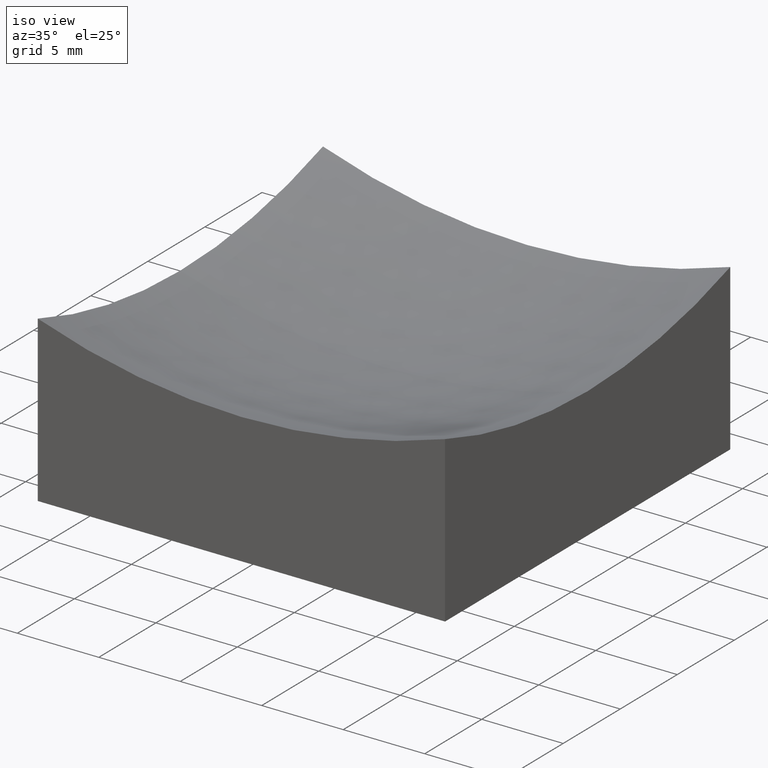
[diagram: clean part render]
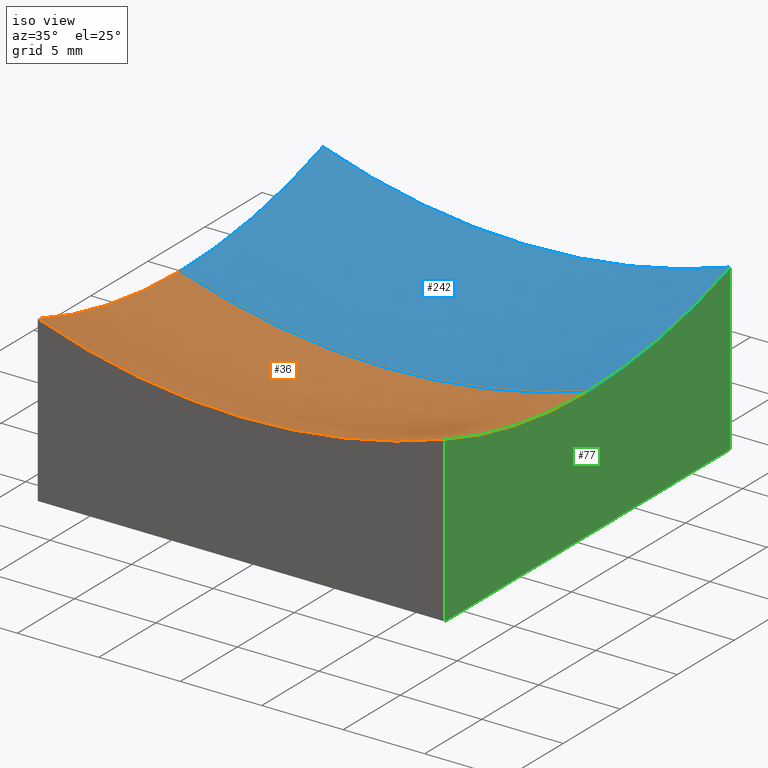
[diagram: same view with three faces highlighted in distinct colors, each labeled with its STEP entity id]
A machine part, iso view with three faces highlighted in distinct colors.
Their STEP definitions:

[orange] entity #36 — the highlighted spherical surface has radius 40 mm.
#6 = EDGE_LOOP ( 'NONE', ( #153, #200, #25, #47, #182 ) ) ;
#7 = DIRECTION ( 'NONE',  ( -0.0000000000000000000, 1.000000000000000000, 0.0000000000000000000 ) ) ;
#15 = AXIS2_PLACEMENT_3D ( 'NONE', #89, #35, #106 ) ;
#18 = AXIS2_PLACEMENT_3D ( 'NONE', #183, #7, #84 ) ;
#22 = CIRCLE ( 'NONE', #63, 37.99671038392666844 ) ;
#25 = ORIENTED_EDGE ( 'NONE', *, *, #154, .F. ) ;
#26 = EDGE_CURVE ( 'NONE', #132, #46, #234, .T. ) ;
#35 = DIRECTION ( 'NONE',  ( 0.0000000000000000000, -1.000000000000000000, -0.0000000000000000000 ) ) ;
#36 = ADVANCED_FACE ( 'NONE', ( #220 ), #203, .F. ) ;
#37 = EDGE_CURVE ( 'NONE', #132, #81, #22, .T. ) ;
#42 = EDGE_CURVE ( 'NONE', #140, #184, #238, .T. ) ;
#46 = VERTEX_POINT ( 'NONE', #85 ) ;
#47 = ORIENTED_EDGE ( 'NONE', *, *, #37, .F. ) ;
#48 = CARTESIAN_POINT ( 'NONE',  ( 12.50000000000000178, 1.734723475976806700E-15, 46.00000000000000000 ) ) ;
#50 = DIRECTION ( 'NONE',  ( 0.0000000000000000000, 0.0000000000000000000, 1.000000000000000000 ) ) ;
#63 = AXIS2_PLACEMENT_3D ( 'NONE', #124, #121, #50 ) ;
#67 = DIRECTION ( 'NONE',  ( 1.000000000000000000, 1.387778780781445676E-16, -0.0000000000000000000 ) ) ;
#74 = CARTESIAN_POINT ( 'NONE',  ( 12.50000000000000355, -12.50000000000000000, 10.11824976398168552 ) ) ;
#81 = VERTEX_POINT ( 'NONE', #228 ) ;
#84 = DIRECTION ( 'NONE',  ( 1.000000000000000000, 0.0000000000000000000, 0.0000000000000000000 ) ) ;
#85 = CARTESIAN_POINT ( 'NONE',  ( 12.50000000000000178, 0.0000000000000000000, 8.003289616073335111 ) ) ;
#89 = CARTESIAN_POINT ( 'NONE',  ( 5.633375276077824704E-15, 0.0000000000000000000, 46.00000000000000000 ) ) ;
#106 = DIRECTION ( 'NONE',  ( 0.0000000000000000000, 0.0000000000000000000, -1.000000000000000000 ) ) ;
#107 = DIRECTION ( 'NONE',  ( 1.000000000000000000, 1.387778780781445676E-16, -0.0000000000000000000 ) ) ;
#121 = DIRECTION ( 'NONE',  ( 0.0000000000000000000, 1.000000000000000000, 0.0000000000000000000 ) ) ;
#124 = CARTESIAN_POINT ( 'NONE',  ( 5.633375276077824704E-15, -12.50000000000000000, 46.00000000000000000 ) ) ;
#125 = AXIS2_PLACEMENT_3D ( 'NONE', #247, #107, #169 ) ;
#132 = VERTEX_POINT ( 'NONE', #74 ) ;
#133 = EDGE_CURVE ( 'NONE', #140, #46, #161, .T. ) ;
#140 = VERTEX_POINT ( 'NONE', #245 ) ;
#153 = ORIENTED_EDGE ( 'NONE', *, *, #133, .F. ) ;
#154 = EDGE_CURVE ( 'NONE', #81, #184, #213, .T. ) ;
#161 = CIRCLE ( 'NONE', #15, 40.00000000000000000 ) ;
#165 = DIRECTION ( 'NONE',  ( 1.224646799147353207E-16, 1.000000000000000000, -5.143359600162762800E-33 ) ) ;
#169 = DIRECTION ( 'NONE',  ( -1.369637101566530917E-16, 1.000000000000000000, 0.0000000000000000000 ) ) ;
#170 = CARTESIAN_POINT ( 'NONE',  ( -12.49999999999999822, 1.530808498934191521E-15, 8.003289616073342216 ) ) ;
#182 = ORIENTED_EDGE ( 'NONE', *, *, #26, .T. ) ;
#183 = CARTESIAN_POINT ( 'NONE',  ( 5.633375276077824704E-15, 0.0000000000000000000, 46.00000000000000000 ) ) ;
#184 = VERTEX_POINT ( 'NONE', #170 ) ;
#198 = CARTESIAN_POINT ( 'NONE',  ( 5.633375276077824704E-15, 0.0000000000000000000, 46.00000000000000000 ) ) ;
#200 = ORIENTED_EDGE ( 'NONE', *, *, #42, .T. ) ;
#203 = SPHERICAL_SURFACE ( 'NONE', #18, 40.00000000000000000 ) ;
#207 = AXIS2_PLACEMENT_3D ( 'NONE', #198, #165, #243 ) ;
#213 = CIRCLE ( 'NONE', #125, 37.99671038392665423 ) ;
#220 = FACE_OUTER_BOUND ( 'NONE', #6, .T. ) ;
#224 = AXIS2_PLACEMENT_3D ( 'NONE', #48, #67, #227 ) ;
#227 = DIRECTION ( 'NONE',  ( -1.369637101566530670E-16, 1.000000000000000000, 0.0000000000000000000 ) ) ;
#228 = CARTESIAN_POINT ( 'NONE',  ( -12.49999999999999645, -12.50000000000000000, 10.11824976398168552 ) ) ;
#234 = CIRCLE ( 'NONE', #224, 37.99671038392666134 ) ;
#238 = CIRCLE ( 'NONE', #207, 40.00000000000000000 ) ;
#243 = DIRECTION ( 'NONE',  ( -1.000000000000000000, 1.224646799147353207E-16, 0.0000000000000000000 ) ) ;
#245 = CARTESIAN_POINT ( 'NONE',  ( 6.402720140176264670E-15, 0.0000000000000000000, 5.999999999999998224 ) ) ;
#247 = CARTESIAN_POINT ( 'NONE',  ( -12.49999999999999822, -1.734723475976807883E-15, 46.00000000000000000 ) ) ;

[blue] entity #242 — the highlighted spherical surface has radius 40 mm.
#15 = AXIS2_PLACEMENT_3D ( 'NONE', #89, #35, #106 ) ;
#19 = CARTESIAN_POINT ( 'NONE',  ( 5.633375276077824704E-15, 0.0000000000000000000, 46.00000000000000000 ) ) ;
#24 = VERTEX_POINT ( 'NONE', #143 ) ;
#35 = DIRECTION ( 'NONE',  ( 0.0000000000000000000, -1.000000000000000000, -0.0000000000000000000 ) ) ;
#42 = EDGE_CURVE ( 'NONE', #140, #184, #238, .T. ) ;
#45 = AXIS2_PLACEMENT_3D ( 'NONE', #251, #59, #218 ) ;
#46 = VERTEX_POINT ( 'NONE', #85 ) ;
#59 = DIRECTION ( 'NONE',  ( 1.000000000000000000, 1.387778780781445676E-16, -0.0000000000000000000 ) ) ;
#66 = ORIENTED_EDGE ( 'NONE', *, *, #133, .T. ) ;
#76 = CIRCLE ( 'NONE', #96, 37.99671038392665423 ) ;
#80 = DIRECTION ( 'NONE',  ( 1.000000000000000000, 1.387778780781445676E-16, -0.0000000000000000000 ) ) ;
#83 = ORIENTED_EDGE ( 'NONE', *, *, #194, .T. ) ;
#85 = CARTESIAN_POINT ( 'NONE',  ( 12.50000000000000178, 0.0000000000000000000, 8.003289616073335111 ) ) ;
#89 = CARTESIAN_POINT ( 'NONE',  ( 5.633375276077824704E-15, 0.0000000000000000000, 46.00000000000000000 ) ) ;
#94 = CARTESIAN_POINT ( 'NONE',  ( -12.49999999999999822, -1.734723475976807883E-15, 46.00000000000000000 ) ) ;
#95 = DIRECTION ( 'NONE',  ( 0.0000000000000000000, 1.000000000000000000, 0.0000000000000000000 ) ) ;
#96 = AXIS2_PLACEMENT_3D ( 'NONE', #94, #80, #217 ) ;
#105 = AXIS2_PLACEMENT_3D ( 'NONE', #19, #221, #235 ) ;
#106 = DIRECTION ( 'NONE',  ( 0.0000000000000000000, 0.0000000000000000000, -1.000000000000000000 ) ) ;
#122 = FACE_OUTER_BOUND ( 'NONE', #180, .T. ) ;
#123 = ORIENTED_EDGE ( 'NONE', *, *, #215, .F. ) ;
#131 = CARTESIAN_POINT ( 'NONE',  ( -12.50000000000000000, 12.50000000000000000, 10.11824976398169262 ) ) ;
#133 = EDGE_CURVE ( 'NONE', #140, #46, #161, .T. ) ;
#137 = CARTESIAN_POINT ( 'NONE',  ( 5.633375276077824704E-15, 12.50000000000000000, 46.00000000000000000 ) ) ;
#140 = VERTEX_POINT ( 'NONE', #245 ) ;
#142 = VERTEX_POINT ( 'NONE', #131 ) ;
#143 = CARTESIAN_POINT ( 'NONE',  ( 12.50000000000000000, 12.50000000000000000, 10.11824976398168552 ) ) ;
#156 = CIRCLE ( 'NONE', #45, 37.99671038392666134 ) ;
#161 = CIRCLE ( 'NONE', #15, 40.00000000000000000 ) ;
#164 = ORIENTED_EDGE ( 'NONE', *, *, #197, .T. ) ;
#165 = DIRECTION ( 'NONE',  ( 1.224646799147353207E-16, 1.000000000000000000, -5.143359600162762800E-33 ) ) ;
#170 = CARTESIAN_POINT ( 'NONE',  ( -12.49999999999999822, 1.530808498934191521E-15, 8.003289616073342216 ) ) ;
#179 = DIRECTION ( 'NONE',  ( 0.0000000000000000000, 0.0000000000000000000, 1.000000000000000000 ) ) ;
#180 = EDGE_LOOP ( 'NONE', ( #223, #66, #83, #164, #123 ) ) ;
#184 = VERTEX_POINT ( 'NONE', #170 ) ;
#187 = CIRCLE ( 'NONE', #248, 37.99671038392666844 ) ;
#194 = EDGE_CURVE ( 'NONE', #46, #24, #156, .T. ) ;
#197 = EDGE_CURVE ( 'NONE', #24, #142, #187, .T. ) ;
#198 = CARTESIAN_POINT ( 'NONE',  ( 5.633375276077824704E-15, 0.0000000000000000000, 46.00000000000000000 ) ) ;
#199 = SPHERICAL_SURFACE ( 'NONE', #105, 40.00000000000000000 ) ;
#207 = AXIS2_PLACEMENT_3D ( 'NONE', #198, #165, #243 ) ;
#215 = EDGE_CURVE ( 'NONE', #184, #142, #76, .T. ) ;
#217 = DIRECTION ( 'NONE',  ( -1.369637101566530917E-16, 1.000000000000000000, 0.0000000000000000000 ) ) ;
#218 = DIRECTION ( 'NONE',  ( -1.369637101566530670E-16, 1.000000000000000000, 0.0000000000000000000 ) ) ;
#221 = DIRECTION ( 'NONE',  ( -0.0000000000000000000, 1.000000000000000000, 0.0000000000000000000 ) ) ;
#223 = ORIENTED_EDGE ( 'NONE', *, *, #42, .F. ) ;
#235 = DIRECTION ( 'NONE',  ( 1.000000000000000000, 0.0000000000000000000, 0.0000000000000000000 ) ) ;
#238 = CIRCLE ( 'NONE', #207, 40.00000000000000000 ) ;
#242 = ADVANCED_FACE ( 'NONE', ( #122 ), #199, .F. ) ;
#243 = DIRECTION ( 'NONE',  ( -1.000000000000000000, 1.224646799147353207E-16, 0.0000000000000000000 ) ) ;
#245 = CARTESIAN_POINT ( 'NONE',  ( 6.402720140176264670E-15, 0.0000000000000000000, 5.999999999999998224 ) ) ;
#248 = AXIS2_PLACEMENT_3D ( 'NONE', #137, #95, #179 ) ;
#251 = CARTESIAN_POINT ( 'NONE',  ( 12.50000000000000178, 1.734723475976806700E-15, 46.00000000000000000 ) ) ;

[green] entity #77 — the highlighted planar face has unit normal (1, 0, -0).
#3 = ORIENTED_EDGE ( 'NONE', *, *, #26, .F. ) ;
#11 = CARTESIAN_POINT ( 'NONE',  ( 12.50000000000000000, 12.50000000000000000, 0.0000000000000000000 ) ) ;
#21 = LINE ( 'NONE', #163, #55 ) ;
#24 = VERTEX_POINT ( 'NONE', #143 ) ;
#26 = EDGE_CURVE ( 'NONE', #132, #46, #234, .T. ) ;
#30 = CARTESIAN_POINT ( 'NONE',  ( 12.50000000000000355, -12.50000000000000000, 20.00000000000000000 ) ) ;
#39 = VECTOR ( 'NONE', #237, 1000.000000000000000 ) ;
#45 = AXIS2_PLACEMENT_3D ( 'NONE', #251, #59, #218 ) ;
#46 = VERTEX_POINT ( 'NONE', #85 ) ;
#48 = CARTESIAN_POINT ( 'NONE',  ( 12.50000000000000178, 1.734723475976806700E-15, 46.00000000000000000 ) ) ;
#55 = VECTOR ( 'NONE', #176, 1000.000000000000000 ) ;
#56 = EDGE_CURVE ( 'NONE', #132, #216, #127, .T. ) ;
#59 = DIRECTION ( 'NONE',  ( 1.000000000000000000, 1.387778780781445676E-16, -0.0000000000000000000 ) ) ;
#67 = DIRECTION ( 'NONE',  ( 1.000000000000000000, 1.387778780781445676E-16, -0.0000000000000000000 ) ) ;
#69 = ORIENTED_EDGE ( 'NONE', *, *, #226, .F. ) ;
#74 = CARTESIAN_POINT ( 'NONE',  ( 12.50000000000000355, -12.50000000000000000, 10.11824976398168552 ) ) ;
#77 = ADVANCED_FACE ( 'NONE', ( #128 ), #150, .T. ) ;
#85 = CARTESIAN_POINT ( 'NONE',  ( 12.50000000000000178, 0.0000000000000000000, 8.003289616073335111 ) ) ;
#88 = DIRECTION ( 'NONE',  ( 1.000000000000000000, 1.387778780781445676E-16, -0.0000000000000000000 ) ) ;
#92 = DIRECTION ( 'NONE',  ( -1.387778780781445676E-16, 1.000000000000000000, 0.0000000000000000000 ) ) ;
#98 = VERTEX_POINT ( 'NONE', #11 ) ;
#100 = ORIENTED_EDGE ( 'NONE', *, *, #56, .T. ) ;
#103 = ORIENTED_EDGE ( 'NONE', *, *, #252, .F. ) ;
#108 = VECTOR ( 'NONE', #178, 1000.000000000000000 ) ;
#115 = CARTESIAN_POINT ( 'NONE',  ( 12.50000000000000000, 12.50000000000000000, 0.0000000000000000000 ) ) ;
#127 = LINE ( 'NONE', #30, #108 ) ;
#128 = FACE_OUTER_BOUND ( 'NONE', #236, .T. ) ;
#132 = VERTEX_POINT ( 'NONE', #74 ) ;
#143 = CARTESIAN_POINT ( 'NONE',  ( 12.50000000000000000, 12.50000000000000000, 10.11824976398168552 ) ) ;
#148 = CARTESIAN_POINT ( 'NONE',  ( 12.50000000000000000, 12.50000000000000000, 20.00000000000000000 ) ) ;
#150 = PLANE ( 'NONE',  #167 ) ;
#156 = CIRCLE ( 'NONE', #45, 37.99671038392666134 ) ;
#163 = CARTESIAN_POINT ( 'NONE',  ( 12.50000000000000000, 12.50000000000000000, 20.00000000000000000 ) ) ;
#167 = AXIS2_PLACEMENT_3D ( 'NONE', #148, #88, #92 ) ;
#176 = DIRECTION ( 'NONE',  ( -0.0000000000000000000, -0.0000000000000000000, -1.000000000000000000 ) ) ;
#177 = CARTESIAN_POINT ( 'NONE',  ( 12.50000000000000355, -12.50000000000000000, 0.0000000000000000000 ) ) ;
#178 = DIRECTION ( 'NONE',  ( -0.0000000000000000000, -0.0000000000000000000, -1.000000000000000000 ) ) ;
#194 = EDGE_CURVE ( 'NONE', #46, #24, #156, .T. ) ;
#216 = VERTEX_POINT ( 'NONE', #177 ) ;
#218 = DIRECTION ( 'NONE',  ( -1.369637101566530670E-16, 1.000000000000000000, 0.0000000000000000000 ) ) ;
#224 = AXIS2_PLACEMENT_3D ( 'NONE', #48, #67, #227 ) ;
#225 = ORIENTED_EDGE ( 'NONE', *, *, #194, .F. ) ;
#226 = EDGE_CURVE ( 'NONE', #98, #216, #240, .T. ) ;
#227 = DIRECTION ( 'NONE',  ( -1.369637101566530670E-16, 1.000000000000000000, 0.0000000000000000000 ) ) ;
#234 = CIRCLE ( 'NONE', #224, 37.99671038392666134 ) ;
#236 = EDGE_LOOP ( 'NONE', ( #3, #100, #69, #103, #225 ) ) ;
#237 = DIRECTION ( 'NONE',  ( 1.387778780781445676E-16, -1.000000000000000000, 0.0000000000000000000 ) ) ;
#240 = LINE ( 'NONE', #115, #39 ) ;
#251 = CARTESIAN_POINT ( 'NONE',  ( 12.50000000000000178, 1.734723475976806700E-15, 46.00000000000000000 ) ) ;
#252 = EDGE_CURVE ( 'NONE', #24, #98, #21, .T. ) ;